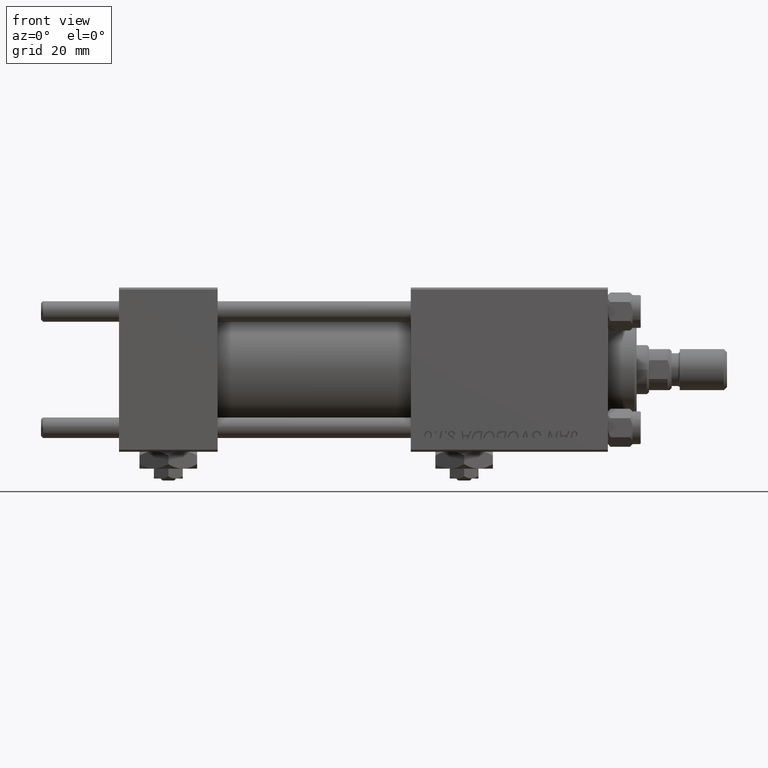
[diagram: clean part render]
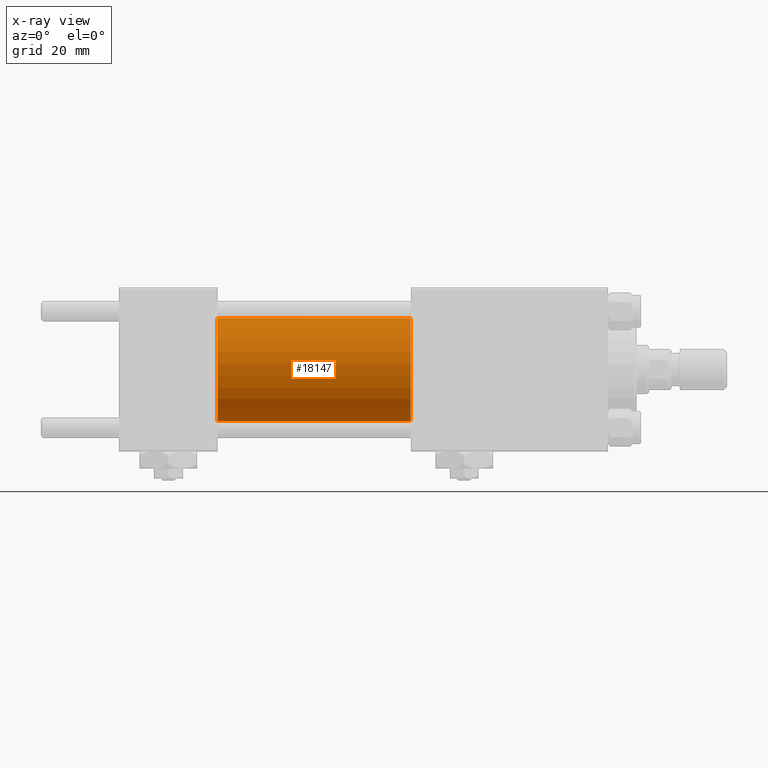
[diagram: x-ray — body ghosted, one internal face saturated and labeled with its STEP entity id]
A machine part, front view, then the same camera in x-ray: the body is ghosted and one INTERNAL B-rep face — a face not visible from any outside direction — is saturated and labeled: STEP entity #18147.
In plain terms, the highlighted cylindrical surface (partial cylindrical patch) has radius 12.5 mm, axis along (-1, -0, -0).
Its self-contained STEP definition (entity closure, byte-faithful):
#578 = CARTESIAN_POINT ( 'NONE',  ( 71.00000000000001421, 0.000000000000000000, 0.000000000000000000 ) ) ;
#836 = DIRECTION ( 'NONE',  ( -1.000000000000000000, -0.000000000000000000, -0.000000000000000000 ) ) ;
#1929 = AXIS2_PLACEMENT_3D ( 'NONE', #12010, #24444, #8036 ) ;
#8009 = FACE_OUTER_BOUND ( 'NONE', #49648, .T. ) ;
#8036 = DIRECTION ( 'NONE',  ( 0.000000000000000000, 0.000000000000000000, -1.000000000000000000 ) ) ;
#9817 = VERTEX_POINT ( 'NONE', #30413 ) ;
#12010 = CARTESIAN_POINT ( 'NONE',  ( 24.00000000000000000, 0.000000000000000000, 0.000000000000000000 ) ) ;
#12522 = VECTOR ( 'NONE', #17988, 1000.000000000000000 ) ;
#12685 = ORIENTED_EDGE ( 'NONE', *, *, #28807, .F. ) ;
#12758 = ORIENTED_EDGE ( 'NONE', *, *, #20464, .T. ) ;
#13502 = ORIENTED_EDGE ( 'NONE', *, *, #28999, .T. ) ;
#15197 = DIRECTION ( 'NONE',  ( 0.000000000000000000, 0.000000000000000000, -1.000000000000000000 ) ) ;
#16361 = CARTESIAN_POINT ( 'NONE',  ( 71.00000000000001421, 1.530808498934191127E-15, -12.49999999999999645 ) ) ;
#17988 = DIRECTION ( 'NONE',  ( -1.000000000000000000, -0.000000000000000000, -0.000000000000000000 ) ) ;
#18147 = ADVANCED_FACE ( 'NONE', ( #8009 ), #24677, .F. ) ;
#19159 = AXIS2_PLACEMENT_3D ( 'NONE', #43190, #23127, #15197 ) ;
#20464 = EDGE_CURVE ( 'NONE', #22179, #37508, #36027, .T. ) ;
#22179 = VERTEX_POINT ( 'NONE', #34296 ) ;
#23127 = DIRECTION ( 'NONE',  ( 1.000000000000000000, 0.000000000000000000, 0.000000000000000000 ) ) ;
#24444 = DIRECTION ( 'NONE',  ( 1.000000000000000000, 0.000000000000000000, 0.000000000000000000 ) ) ;
#24677 = CYLINDRICAL_SURFACE ( 'NONE', #41858, 12.49999999999999645 ) ;
#28503 = VERTEX_POINT ( 'NONE', #34166 ) ;
#28807 = EDGE_CURVE ( 'NONE', #22179, #28503, #48395, .T. ) ;
#28999 = EDGE_CURVE ( 'NONE', #37508, #9817, #33061, .T. ) ;
#30413 = CARTESIAN_POINT ( 'NONE',  ( 24.00000000000000000, 1.530808498934191127E-15, -12.49999999999999645 ) ) ;
#32025 = CARTESIAN_POINT ( 'NONE',  ( 71.00000000000001421, 0.000000000000000000, 12.49999999999999645 ) ) ;
#33061 = LINE ( 'NONE', #37800, #12522 ) ;
#34166 = CARTESIAN_POINT ( 'NONE',  ( 24.00000000000000000, 0.000000000000000000, 12.49999999999999645 ) ) ;
#34296 = CARTESIAN_POINT ( 'NONE',  ( 71.00000000000001421, 0.000000000000000000, 12.49999999999999645 ) ) ;
#36027 = CIRCLE ( 'NONE', #19159, 12.49999999999999645 ) ;
#36169 = VECTOR ( 'NONE', #44160, 1000.000000000000000 ) ;
#37508 = VERTEX_POINT ( 'NONE', #16361 ) ;
#37800 = CARTESIAN_POINT ( 'NONE',  ( 71.00000000000001421, 1.530808498934191127E-15, -12.49999999999999645 ) ) ;
#40767 = DIRECTION ( 'NONE',  ( 0.000000000000000000, 0.000000000000000000, 1.000000000000000000 ) ) ;
#41858 = AXIS2_PLACEMENT_3D ( 'NONE', #578, #836, #40767 ) ;
#42684 = ORIENTED_EDGE ( 'NONE', *, *, #51166, .F. ) ;
#43190 = CARTESIAN_POINT ( 'NONE',  ( 71.00000000000001421, 0.000000000000000000, 0.000000000000000000 ) ) ;
#44160 = DIRECTION ( 'NONE',  ( -1.000000000000000000, -0.000000000000000000, -0.000000000000000000 ) ) ;
#45853 = CIRCLE ( 'NONE', #1929, 12.49999999999999645 ) ;
#48395 = LINE ( 'NONE', #32025, #36169 ) ;
#49648 = EDGE_LOOP ( 'NONE', ( #12758, #13502, #42684, #12685 ) ) ;
#51166 = EDGE_CURVE ( 'NONE', #28503, #9817, #45853, .T. ) ;